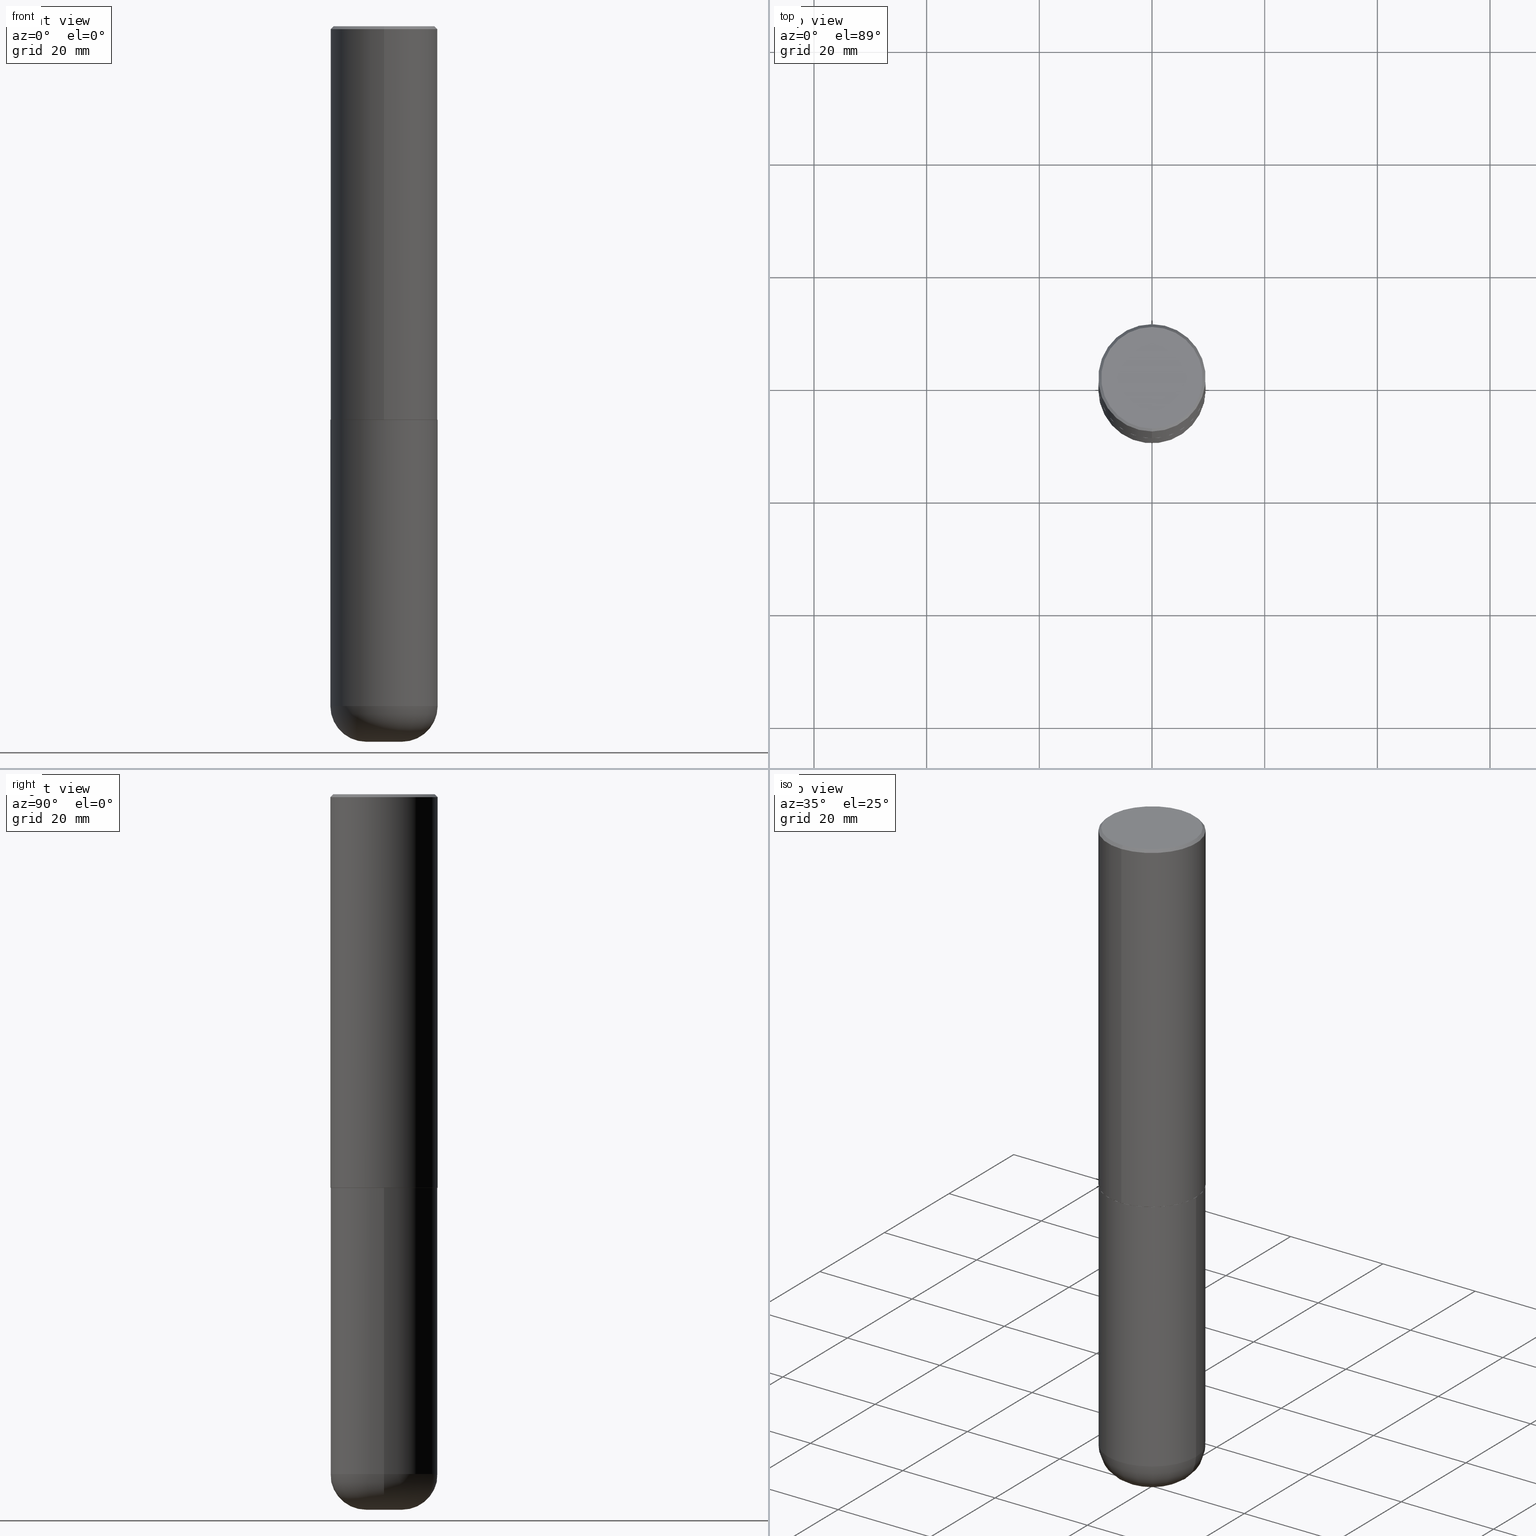
[diagram: canonical four-view strip — front | top / right | iso, engineering-drawing reading convention]
A machine part, canonical four-view strip (front | top / right | iso — engineering-drawing reading convention). The complete STEP part file that produces these views, byte-faithful:
ISO-10303-21;
HEADER;
FILE_DESCRIPTION (( 'STEP AP203' ),
    '1' );
FILE_NAME ('37688.STEP',
    '2024-03-02T08:21:36',
    ( '' ),
    ( '' ),
    'SwSTEP 2.0',
    'SolidWorks 2023',
    '' );
FILE_SCHEMA (( 'CONFIG_CONTROL_DESIGN' ));
ENDSEC;

DATA;
#1 = ADVANCED_FACE ( 'NONE', ( #340 ), #23, .T. ) ;
#2 = MECHANICAL_CONTEXT ( 'NONE', #353, 'mechanical' ) ;
#3 = DIRECTION ( 'NONE',  ( 5.024295867789434219E-15, 0.7071067811867430830, 0.7071067811863519514 ) ) ;
#4 = COORDINATED_UNIVERSAL_TIME_OFFSET ( 5, 0, .BEHIND. ) ;
#5 = ADVANCED_FACE ( 'NONE', ( #19 ), #278, .T. ) ;
#6 = DIRECTION ( 'NONE',  ( -2.446040391741596606E-29, 3.490662795793665557E-15, 1.000000000000000000 ) ) ;
#7 = CIRCLE ( 'NONE', #43, 0.1250000000000000555 ) ;
#8 = ORGANIZATION ( 'UNSPECIFIED', 'UNSPECIFIED', '' ) ;
#9 = FACE_OUTER_BOUND ( 'NONE', #371, .T. ) ;
#10 = ORIENTED_EDGE ( 'NONE', *, *, #62, .T. ) ;
#11 = DIRECTION ( 'NONE',  ( 1.000000000000000000, -6.982962677686266711E-15, 0.000000000000000000 ) ) ;
#12 = CC_DESIGN_PERSON_AND_ORGANIZATION_ASSIGNMENT ( #66, #235, ( #358 ) ) ;
#13 = DIRECTION ( 'NONE',  ( 2.446040391741596606E-29, -3.490662795793665557E-15, -1.000000000000000000 ) ) ;
#14 = ORIENTED_EDGE ( 'NONE', *, *, #173, .T. ) ;
#15 = CLOSED_SHELL ( 'NONE', ( #86, #363, #74, #1, #339, #5 ) ) ;
#16 = ORIENTED_EDGE ( 'NONE', *, *, #169, .T. ) ;
#17 = ORIENTED_EDGE ( 'NONE', *, *, #209, .T. ) ;
#18 = PRODUCT_RELATED_PRODUCT_CATEGORY ( 'detail', '', ( #358 ) ) ;
#19 = FACE_OUTER_BOUND ( 'NONE', #247, .T. ) ;
#20 = EDGE_CURVE ( 'NONE', #395, #275, #378, .T. ) ;
#21 = CARTESIAN_POINT ( 'NONE',  ( 0.000000000000000000, 0.000000000000000000, 0.000000000000000000 ) ) ;
#22 = DIRECTION ( 'NONE',  ( 2.438088387897960049E-29, -3.491481338843145188E-15, -1.000000000000000000 ) ) ;
#23 = CYLINDRICAL_SURFACE ( 'NONE', #63, 0.3749999999999999445 ) ;
#24 = CARTESIAN_POINT ( 'NONE',  ( 1.222734403092568523E-28, -1.745740669421573304E-14, -5.000000000000000888 ) ) ;
#25 = APPROVAL_PERSON_ORGANIZATION ( #346, #61, #163 ) ;
#26 = CARTESIAN_POINT ( 'NONE',  ( 2.618611004132350411E-15, 0.3749999999999999445, -0.02000000000000139513 ) ) ;
#27 = COORDINATED_UNIVERSAL_TIME_OFFSET ( 5, 0, .BEHIND. ) ;
#28 = CC_DESIGN_DATE_AND_TIME_ASSIGNMENT ( #319, #201, ( #417 ) ) ;
#29 = DIRECTION ( 'NONE',  ( -2.445468806185136877E-29, 3.491481338843145188E-15, 1.000000000000000000 ) ) ;
#30 = MANIFOLD_SOLID_BREP ( 'Body-Move/Copy2[1]', #15 ) ;
#31 = CALENDAR_DATE ( 2024, 2, 3 ) ;
#32 = DIRECTION ( 'NONE',  ( -6.982962677686266711E-15, -1.000000000000000000, 3.491481338843145583E-15 ) ) ;
#33 = AXIS2_PLACEMENT_3D ( 'NONE', #84, #216, #249 ) ;
#34 = APPROVAL_STATUS ( 'not_yet_approved' ) ;
#35 = LINE ( 'NONE', #167, #283 ) ;
#36 = PERSON_AND_ORGANIZATION ( #134, #8 ) ;
#37 = CARTESIAN_POINT ( 'NONE',  ( 6.726611077289389265E-29, -9.599322688432580971E-15, -2.750000000000000000 ) ) ;
#38 = CARTESIAN_POINT ( 'NONE',  ( 1.161597682937940108E-28, -1.658453635950494339E-14, -4.750000000000000000 ) ) ;
#39 = EDGE_LOOP ( 'NONE', ( #313, #407, #238, #375 ) ) ;
#40 = DIRECTION ( 'NONE',  ( 1.000000000000000000, -6.982962677686266711E-15, 0.000000000000000000 ) ) ;
#41 = VERTEX_POINT ( 'NONE', #402 ) ;
#42 = DIRECTION ( 'NONE',  ( -6.982962677686265922E-15, -1.000000000000000000, 3.494488891895536035E-15 ) ) ;
#43 = AXIS2_PLACEMENT_3D ( 'NONE', #24, #88, #412 ) ;
#44 = EDGE_LOOP ( 'NONE', ( #277, #335, #213, #246 ) ) ;
#45 = EDGE_LOOP ( 'NONE', ( #296, #14 ) ) ;
#46 = EDGE_CURVE ( 'NONE', #41, #241, #336, .T. ) ;
#47 = DIRECTION ( 'NONE',  ( -1.000000000000000000, 6.982962677686265922E-15, -4.876176775795935793E-29 ) ) ;
#48 = DIRECTION ( 'NONE',  ( -2.446040391741596606E-29, 3.490662795793665557E-15, 1.000000000000000000 ) ) ;
#49 = CIRCLE ( 'NONE', #119, 0.2500000000000003886 ) ;
#50 = ORIENTED_EDGE ( 'NONE', *, *, #331, .T. ) ;
#51 = EDGE_CURVE ( 'NONE', #219, #175, #197, .T. ) ;
#52 = DIRECTION ( 'NONE',  ( 1.000000000000000000, -6.982962677686266711E-15, 4.876176775795935793E-29 ) ) ;
#53 = CARTESIAN_POINT ( 'NONE',  ( 0.000000000000000000, 0.000000000000000000, 0.000000000000000000 ) ) ;
#54 = AXIS2_PLACEMENT_3D ( 'NONE', #114, #48, #309 ) ;
#55 = COORDINATED_UNIVERSAL_TIME_OFFSET ( 5, 0, .BEHIND. ) ;
#56 = CARTESIAN_POINT ( 'NONE',  ( 0.3749999999999999445, -2.618611004132349622E-15, 1.828566290923475642E-29 ) ) ;
#57 = PERSON_AND_ORGANIZATION ( #134, #8 ) ;
#58 = CARTESIAN_POINT ( 'NONE',  ( 0.1250000000000000278, -1.745740669421572673E-14, -4.750000000000000000 ) ) ;
#59 = PERSON_AND_ORGANIZATION_ROLE ( 'design_supplier' ) ;
#60 = CARTESIAN_POINT ( 'NONE',  ( -0.3750000000000002220, -1.392000110040456296E-14, -4.750000000000000000 ) ) ;
#61 = APPROVAL ( #34, 'UNSPECIFIED' ) ;
#62 = EDGE_CURVE ( 'NONE', #241, #41, #127, .T. ) ;
#63 = AXIS2_PLACEMENT_3D ( 'NONE', #118, #342, #77 ) ;
#64 = AXIS2_PLACEMENT_3D ( 'NONE', #72, #100, #141 ) ;
#65 = CYLINDRICAL_SURFACE ( 'NONE', #403, 0.3750000000000002220 ) ;
#66 = PERSON_AND_ORGANIZATION ( #134, #8 ) ;
#67 = DIRECTION ( 'NONE',  ( -2.446040391741596606E-29, 3.490662795793665557E-15, 1.000000000000000000 ) ) ;
#68 = ORIENTED_EDGE ( 'NONE', *, *, #396, .F. ) ;
#69 = DIRECTION ( 'NONE',  ( 2.446040391741596606E-29, -3.490662795793665557E-15, -1.000000000000000000 ) ) ;
#70 = AXIS2_PLACEMENT_3D ( 'NONE', #153, #338, #184 ) ;
#71 = CIRCLE ( 'NONE', #179, 0.3750000000000000555 ) ;
#72 = CARTESIAN_POINT ( 'NONE',  ( 1.161597682937940108E-28, -1.658453635950494339E-14, -4.750000000000000000 ) ) ;
#73 = ORIENTED_EDGE ( 'NONE', *, *, #106, .F. ) ;
#74 = ADVANCED_FACE ( 'NONE', ( #217 ), #280, .F. ) ;
#75 = APPROVAL ( #133, 'UNSPECIFIED' ) ;
#76 = ORIENTED_EDGE ( 'NONE', *, *, #370, .F. ) ;
#77 = DIRECTION ( 'NONE',  ( 1.000000000000000000, -6.982962677686266711E-15, 4.876176775795935793E-29 ) ) ;
#78 = ORIENTED_EDGE ( 'NONE', *, *, #379, .T. ) ;
#79 = PRODUCT_DEFINITION_SHAPE ( 'NONE', 'NONE',  #115 ) ;
#80 = ORIENTED_EDGE ( 'NONE', *, *, #239, .F. ) ;
#81 = ORIENTED_EDGE ( 'NONE', *, *, #276, .F. ) ;
#82 = CONICAL_SURFACE ( 'NONE', #345, 0.3739999999999999991, 0.7853981633977213939 ) ;
#83 = LOCAL_TIME ( 3, 21, 36.00000000000000000, #55 ) ;
#84 = CARTESIAN_POINT ( 'NONE',  ( 6.726611077289389265E-29, -9.599322688432580971E-15, -2.750000000000000000 ) ) ;
#85 = DIRECTION ( 'NONE',  ( 7.105427357601001859E-15, 1.000000000000000000, -3.491481338843145583E-15 ) ) ;
#86 = ADVANCED_FACE ( 'NONE', ( #183 ), #281, .T. ) ;
#87 = COORDINATED_UNIVERSAL_TIME_OFFSET ( 5, 0, .BEHIND. ) ;
#88 = DIRECTION ( 'NONE',  ( -2.445468806185136597E-29, 3.491481338843145583E-15, 1.000000000000000000 ) ) ;
#89 = EDGE_CURVE ( 'NONE', #395, #101, #151, .T. ) ;
#90 = CONICAL_SURFACE ( 'NONE', #329, 0.3750000000000000555, 0.7853981633974465026 ) ;
#91 = APPROVAL_ROLE ( '' ) ;
#92 = CARTESIAN_POINT ( 'NONE',  ( 1.161597682937940108E-28, -1.658453635950494339E-14, -4.750000000000000000 ) ) ;
#93 = PERSON_AND_ORGANIZATION_ROLE ( 'creator' ) ;
#94 = EDGE_CURVE ( 'NONE', #275, #146, #116, .T. ) ;
#95 = CARTESIAN_POINT ( 'NONE',  ( -0.1250000000000000278, -1.569635793980481500E-14, -4.750000000000000000 ) ) ;
#96 = FACE_OUTER_BOUND ( 'NONE', #111, .T. ) ;
#97 = VECTOR ( 'NONE', #124, 39.37007874015748143 ) ;
#98 = AXIS2_PLACEMENT_3D ( 'NONE', #253, #318, #224 ) ;
#99 = LOCAL_TIME ( 3, 21, 36.00000000000000000, #321 ) ;
#100 = DIRECTION ( 'NONE',  ( -2.445468806185136597E-29, 3.491481338843145583E-15, 1.000000000000000000 ) ) ;
#101 = VERTEX_POINT ( 'NONE', #26 ) ;
#102 = CARTESIAN_POINT ( 'NONE',  ( 6.725039217009124520E-29, -9.601573681818649859E-15, -2.750000000000000000 ) ) ;
#103 = APPROVAL ( #159, 'UNSPECIFIED' ) ;
#104 = DIRECTION ( 'NONE',  ( -6.982962677686265922E-15, -1.000000000000000000, 3.490662795793665557E-15 ) ) ;
#105 = ORIENTED_EDGE ( 'NONE', *, *, #286, .F. ) ;
#106 = EDGE_CURVE ( 'NONE', #245, #117, #107, .T. ) ;
#107 = CIRCLE ( 'NONE', #311, 0.3749999999999999445 ) ;
#108 = DIRECTION ( 'NONE',  ( -2.446040391741596606E-29, 3.490662795793665557E-15, 1.000000000000000000 ) ) ;
#109 = ORIENTED_EDGE ( 'NONE', *, *, #276, .T. ) ;
#110 = SHAPE_DEFINITION_REPRESENTATION ( #79, #203 ) ;
#111 = EDGE_LOOP ( 'NONE', ( #252, #211, #50, #76 ) ) ;
#112 = VECTOR ( 'NONE', #405, 39.37007874015748143 ) ;
#113 = AXIS2_PLACEMENT_3D ( 'NONE', #397, #108, #243 ) ;
#114 = CARTESIAN_POINT ( 'NONE',  ( 6.724165036897648492E-29, -9.595832025636787455E-15, -2.749000000000000110 ) ) ;
#115 = PRODUCT_DEFINITION ( 'UNKNOWN', '', #391, #383 ) ;
#116 = LINE ( 'NONE', #248, #373 ) ;
#117 = VERTEX_POINT ( 'NONE', #60 ) ;
#118 = CARTESIAN_POINT ( 'NONE',  ( 0.000000000000000000, 0.000000000000000000, 0.000000000000000000 ) ) ;
#119 = AXIS2_PLACEMENT_3D ( 'NONE', #95, #85, #229 ) ;
#120 = TOROIDAL_SURFACE ( 'NONE', #64, 0.1250000000000000278, 0.2500000000000003886 ) ;
#121 = ADVANCED_FACE ( 'NONE', ( #157 ), #82, .T. ) ;
#122 = CARTESIAN_POINT ( 'NONE',  ( 6.726611077289389265E-29, -9.599322688432580971E-15, -2.750000000000000000 ) ) ;
#123 = PERSON_AND_ORGANIZATION_ROLE ( 'creator' ) ;
#124 = DIRECTION ( 'NONE',  ( -4.937700262165896205E-15, -0.7071067811867381980, 0.7071067811863568364 ) ) ;
#125 = APPROVAL_DATE_TIME ( #388, #103 ) ;
#126 = CYLINDRICAL_SURFACE ( 'NONE', #178, 0.3750000000000002220 ) ;
#127 = CIRCLE ( 'NONE', #70, 0.3739999999999999991 ) ;
#128 = CC_DESIGN_PERSON_AND_ORGANIZATION_ASSIGNMENT ( #416, #260, ( #417 ) ) ;
#129 = CC_DESIGN_APPROVAL ( #103, ( #115 ) ) ;
#130 = DIRECTION ( 'NONE',  ( -2.446040391741596606E-29, 3.490662795793665557E-15, 1.000000000000000000 ) ) ;
#131 = EDGE_CURVE ( 'NONE', #117, #245, #188, .T. ) ;
#132 = DIRECTION ( 'NONE',  ( -6.982962677686265922E-15, -1.000000000000000000, 2.913971193241877611E-15 ) ) ;
#133 = APPROVAL_STATUS ( 'not_yet_approved' ) ;
#134 = PERSON ( 'UNSPECIFIED', 'UNSPECIFIED', 'UNSPECIFIED', ('UNSPECIFIED'), ('UNSPECIFIED'), ('UNSPECIFIED') ) ;
#135 = DIRECTION ( 'NONE',  ( -2.445468806185136597E-29, 3.491481338843145583E-15, 1.000000000000000000 ) ) ;
#136 = ORIENTED_EDGE ( 'NONE', *, *, #106, .T. ) ;
#137 = AXIS2_PLACEMENT_3D ( 'NONE', #102, #212, #11 ) ;
#138 = LOCAL_TIME ( 3, 21, 36.00000000000000000, #27 ) ;
#139 = CARTESIAN_POINT ( 'NONE',  ( 6.725039217009124520E-29, -9.601573681818649859E-15, -2.750000000000000000 ) ) ;
#140 = ADVANCED_FACE ( 'NONE', ( #291 ), #250, .T. ) ;
#141 = DIRECTION ( 'NONE',  ( 1.000000000000000000, -6.982962677686270655E-15, 4.883557194083114583E-29 ) ) ;
#142 = DIRECTION ( 'NONE',  ( 6.982962677686265922E-15, 1.000000000000000000, -3.494488891895536035E-15 ) ) ;
#143 = EDGE_LOOP ( 'NONE', ( #400, #109, #145, #307 ) ) ;
#144 = CLOSED_SHELL ( 'NONE', ( #140, #152, #308, #328, #256, #121, #365, #299 ) ) ;
#145 = ORIENTED_EDGE ( 'NONE', *, *, #226, .T. ) ;
#146 = VERTEX_POINT ( 'NONE', #192 ) ;
#147 = DIRECTION ( 'NONE',  ( -6.982962677686265922E-15, -1.000000000000000000, 3.490662795793665557E-15 ) ) ;
#148 = VECTOR ( 'NONE', #6, 39.37007874015748143 ) ;
#149 = CC_DESIGN_APPROVAL ( #61, ( #417 ) ) ;
#150 = CC_DESIGN_PERSON_AND_ORGANIZATION_ASSIGNMENT ( #228, #93, ( #391 ) ) ;
#151 = LINE ( 'NONE', #279, #112 ) ;
#152 = ADVANCED_FACE ( 'NONE', ( #196 ), #126, .T. ) ;
#153 = CARTESIAN_POINT ( 'NONE',  ( 6.726611077289389265E-29, -9.599322688432580971E-15, -2.750000000000000000 ) ) ;
#154 = DIRECTION ( 'NONE',  ( -2.446040391741596606E-29, 3.490662795793665557E-15, 1.000000000000000000 ) ) ;
#155 = CC_DESIGN_PERSON_AND_ORGANIZATION_ASSIGNMENT ( #230, #123, ( #115 ) ) ;
#156 = CIRCLE ( 'NONE', #137, 0.3750000000000000555 ) ;
#157 = FACE_OUTER_BOUND ( 'NONE', #380, .T. ) ;
#158 = APPROVAL_PERSON_ORGANIZATION ( #36, #75, #91 ) ;
#159 = APPROVAL_STATUS ( 'not_yet_approved' ) ;
#160 = CARTESIAN_POINT ( 'NONE',  ( -2.611628041454596160E-15, -0.3740000000000096581, -2.749999999999998668 ) ) ;
#161 = CALENDAR_DATE ( 2024, 2, 3 ) ;
#162 = DIRECTION ( 'NONE',  ( -2.446040391741596606E-29, 3.490662795793665557E-15, 1.000000000000000000 ) ) ;
#163 = APPROVAL_ROLE ( '' ) ;
#164 = CARTESIAN_POINT ( 'NONE',  ( 1.161597682937940108E-28, -1.658453635950494339E-14, -4.750000000000000000 ) ) ;
#165 = AXIS2_PLACEMENT_3D ( 'NONE', #58, #32, #389 ) ;
#166 = DATE_AND_TIME ( #351, #83 ) ;
#167 = CARTESIAN_POINT ( 'NONE',  ( 2.657429831742841742E-15, 0.3739999999999903957, -2.750000000000000888 ) ) ;
#168 =( LENGTH_UNIT ( ) NAMED_UNIT ( * ) SI_UNIT ( $, .METRE. ) );
#169 = EDGE_CURVE ( 'NONE', #175, #101, #381, .T. ) ;
#170 = CARTESIAN_POINT ( 'NONE',  ( 2.548781377355487113E-15, 0.3549999999999999822, -1.192522237898212341E-15 ) ) ;
#171 = ORIENTED_EDGE ( 'NONE', *, *, #304, .F. ) ;
#172 = CIRCLE ( 'NONE', #165, 0.2500000000000003886 ) ;
#173 = EDGE_CURVE ( 'NONE', #275, #395, #242, .T. ) ;
#174 = DIRECTION ( 'NONE',  ( -2.445468806185136877E-29, 3.491481338843145188E-15, 1.000000000000000000 ) ) ;
#175 = VERTEX_POINT ( 'NONE', #355 ) ;
#176 = FACE_OUTER_BOUND ( 'NONE', #45, .T. ) ;
#177 = ORIENTED_EDGE ( 'NONE', *, *, #62, .F. ) ;
#178 = AXIS2_PLACEMENT_3D ( 'NONE', #352, #130, #258 ) ;
#179 = AXIS2_PLACEMENT_3D ( 'NONE', #210, #67, #42 ) ;
#180 = ORIENTED_EDGE ( 'NONE', *, *, #209, .F. ) ;
#181 = ORIENTED_EDGE ( 'NONE', *, *, #396, .T. ) ;
#182 = EDGE_CURVE ( 'NONE', #204, #117, #49, .T. ) ;
#183 = FACE_OUTER_BOUND ( 'NONE', #398, .T. ) ;
#184 = DIRECTION ( 'NONE',  ( -6.982962677686266711E-15, -1.000000000000000000, 2.921762560068730595E-15 ) ) ;
#185 = EDGE_LOOP ( 'NONE', ( #68, #187, #303, #171 ) ) ;
#186 = EDGE_CURVE ( 'NONE', #175, #219, #290, .T. ) ;
#187 = ORIENTED_EDGE ( 'NONE', *, *, #131, .T. ) ;
#188 = CIRCLE ( 'NONE', #384, 0.3749999999999999445 ) ;
#189 = CARTESIAN_POINT ( 'NONE',  ( 2.664535259100376880E-15, 0.3750000000000002220, -1.308998548422625521E-15 ) ) ;
#190 = CC_DESIGN_SECURITY_CLASSIFICATION ( #417, ( #391 ) ) ;
#191 = DIRECTION ( 'NONE',  ( 0.000000000000000000, 0.000000000000000000, 1.000000000000000000 ) ) ;
#192 = CARTESIAN_POINT ( 'NONE',  ( -2.572686749164323547E-15, -0.3750000000000001110, -0.01999999999999877570 ) ) ;
#193 = CALENDAR_DATE ( 2024, 2, 3 ) ;
#194 = DIRECTION ( 'NONE',  ( -2.446040391741596606E-29, 3.490662795793665557E-15, 1.000000000000000000 ) ) ;
#195 = PERSON_AND_ORGANIZATION ( #134, #8 ) ;
#196 = FACE_OUTER_BOUND ( 'NONE', #393, .T. ) ;
#197 = CIRCLE ( 'NONE', #54, 0.3750000000000003886 ) ;
#198 = CC_DESIGN_APPROVAL ( #75, ( #391 ) ) ;
#199 = DATE_AND_TIME ( #390, #251 ) ;
#200 = DIRECTION ( 'NONE',  ( 2.446040391741596045E-29, -3.490662795793665557E-15, -1.000000000000000000 ) ) ;
#201 = DATE_TIME_ROLE ( 'classification_date' ) ;
#202 = LINE ( 'NONE', #294, #411 ) ;
#203 = ADVANCED_BREP_SHAPE_REPRESENTATION ( '37688', ( #30, #310, #234 ), #404 ) ;
#204 = VERTEX_POINT ( 'NONE', #323 ) ;
#205 = FACE_OUTER_BOUND ( 'NONE', #39, .T. ) ;
#206 = ORIENTED_EDGE ( 'NONE', *, *, #408, .F. ) ;
#207 = AXIS2_PLACEMENT_3D ( 'NONE', #377, #220, #47 ) ;
#208 = LOCAL_TIME ( 3, 21, 36.00000000000000000, #4 ) ;
#209 = EDGE_CURVE ( 'NONE', #41, #175, #35, .T. ) ;
#210 = CARTESIAN_POINT ( 'NONE',  ( 4.892080783483214581E-31, -6.981325591587361238E-17, -0.02000000000000008715 ) ) ;
#211 = ORIENTED_EDGE ( 'NONE', *, *, #186, .T. ) ;
#212 = DIRECTION ( 'NONE',  ( -2.445468806185136597E-29, 3.491481338843145583E-15, 1.000000000000000000 ) ) ;
#213 = ORIENTED_EDGE ( 'NONE', *, *, #408, .T. ) ;
#214 = ORIENTED_EDGE ( 'NONE', *, *, #226, .F. ) ;
#215 = CARTESIAN_POINT ( 'NONE',  ( -1.829488409846578039E-28, -6.116697459284396031E-14, -5.000000000000000000 ) ) ;
#216 = DIRECTION ( 'NONE',  ( -2.446040391741596606E-29, 3.490662795793665557E-15, 1.000000000000000000 ) ) ;
#217 = FACE_OUTER_BOUND ( 'NONE', #364, .T. ) ;
#218 = AXIS2_PLACEMENT_3D ( 'NONE', #37, #360, #104 ) ;
#219 = VERTEX_POINT ( 'NONE', #227 ) ;
#220 = DIRECTION ( 'NONE',  ( 2.438088387897960049E-29, -3.491481338843145188E-15, -1.000000000000000000 ) ) ;
#221 = CARTESIAN_POINT ( 'NONE',  ( -2.504081769186608216E-15, -0.3549999999999999822, 1.285848347115290366E-15 ) ) ;
#222 =( CONVERSION_BASED_UNIT ( 'INCH', #414 ) LENGTH_UNIT ( ) NAMED_UNIT ( #406 ) );
#223 = CIRCLE ( 'NONE', #98, 0.1250000000000000555 ) ;
#224 = DIRECTION ( 'NONE',  ( 1.000000000000000000, -6.982962677686275388E-15, 0.000000000000000000 ) ) ;
#225 = DATE_AND_TIME ( #31, #208 ) ;
#226 = EDGE_CURVE ( 'NONE', #401, #245, #172, .T. ) ;
#227 = CARTESIAN_POINT ( 'NONE',  ( -2.618611004132284935E-15, -0.3750000000000099920, -2.748999999999999222 ) ) ;
#228 = PERSON_AND_ORGANIZATION ( #134, #8 ) ;
#229 = DIRECTION ( 'NONE',  ( -1.000000000000000000, 7.105427357601000281E-15, 0.000000000000000000 ) ) ;
#230 = PERSON_AND_ORGANIZATION ( #134, #8 ) ;
#231 = CARTESIAN_POINT ( 'NONE',  ( -1.141397163745304909E-45, 1.628849886601155835E-31, 4.666305460853910467E-17 ) ) ;
#232 = CC_DESIGN_DATE_AND_TIME_ASSIGNMENT ( #199, #324, ( #115 ) ) ;
#233 = AXIS2_PLACEMENT_3D ( 'NONE', #316, #284, #132 ) ;
#234 = AXIS2_PLACEMENT_3D ( 'NONE', #317, #191, #354 ) ;
#235 = PERSON_AND_ORGANIZATION_ROLE ( 'design_owner' ) ;
#236 = PLANE ( 'NONE',  #218 ) ;
#237 = LINE ( 'NONE', #392, #148 ) ;
#238 = ORIENTED_EDGE ( 'NONE', *, *, #89, .T. ) ;
#239 = EDGE_CURVE ( 'NONE', #241, #219, #386, .T. ) ;
#240 = CARTESIAN_POINT ( 'NONE',  ( -0.3750000000000000555, -1.042851976156142014E-14, -2.750000000000000000 ) ) ;
#241 = VERTEX_POINT ( 'NONE', #263 ) ;
#242 = CIRCLE ( 'NONE', #341, 0.3549999999999999822 ) ;
#243 = DIRECTION ( 'NONE',  ( -6.982962677686265922E-15, -1.000000000000000000, 3.494488891895536035E-15 ) ) ;
#244 = ORIENTED_EDGE ( 'NONE', *, *, #239, .T. ) ;
#245 = VERTEX_POINT ( 'NONE', #350 ) ;
#246 = ORIENTED_EDGE ( 'NONE', *, *, #89, .F. ) ;
#247 = EDGE_LOOP ( 'NONE', ( #372, #81 ) ) ;
#248 = CARTESIAN_POINT ( 'NONE',  ( -2.572686749164323547E-15, -0.3750000000000001110, -0.01999999999999877570 ) ) ;
#249 = DIRECTION ( 'NONE',  ( -6.982962677686266711E-15, -1.000000000000000000, 2.921762560068730595E-15 ) ) ;
#250 = CONICAL_SURFACE ( 'NONE', #367, 0.3739999999999999991, 0.7853981633977213939 ) ;
#251 = LOCAL_TIME ( 3, 21, 36.00000000000000000, #87 ) ;
#252 = ORIENTED_EDGE ( 'NONE', *, *, #169, .F. ) ;
#253 = CARTESIAN_POINT ( 'NONE',  ( 1.222734403092568523E-28, -1.745740669421573304E-14, -5.000000000000000888 ) ) ;
#254 = APPLICATION_PROTOCOL_DEFINITION ( 'international standard', 'config_control_design', 1994, #399 ) ;
#255 = DIRECTION ( 'NONE',  ( -6.982962677686266711E-15, -1.000000000000000000, 3.490662795793665951E-15 ) ) ;
#256 = ADVANCED_FACE ( 'NONE', ( #96 ), #65, .T. ) ;
#257 = AXIS2_PLACEMENT_3D ( 'NONE', #215, #22, #312 ) ;
#258 = DIRECTION ( 'NONE',  ( -6.982962677686266711E-15, -1.000000000000000000, 3.490662795793665951E-15 ) ) ;
#259 = CONICAL_SURFACE ( 'NONE', #369, 0.3750000000000000555, 0.7853981633974465026 ) ;
#260 = PERSON_AND_ORGANIZATION_ROLE ( 'classification_officer' ) ;
#261 = DIRECTION ( 'NONE',  ( 1.000000000000000000, -6.982962677686269077E-15, 0.000000000000000000 ) ) ;
#262 = EDGE_CURVE ( 'NONE', #401, #204, #7, .T. ) ;
#263 = CARTESIAN_POINT ( 'NONE',  ( -2.611628041454596160E-15, -0.3740000000000096581, -2.749999999999998668 ) ) ;
#264 = SECURITY_CLASSIFICATION_LEVEL ( 'unclassified' ) ;
#265 = CARTESIAN_POINT ( 'NONE',  ( 2.478951750578624209E-15, 0.3549999999999999822, -1.215853765202481601E-15 ) ) ;
#266 = AXIS2_PLACEMENT_3D ( 'NONE', #265, #200, #301 ) ;
#267 = ORIENTED_EDGE ( 'NONE', *, *, #331, .F. ) ;
#268 = CARTESIAN_POINT ( 'NONE',  ( 0.3750000000000000555, -1.222018468595100145E-14, -2.750000000000000000 ) ) ;
#269 = CC_DESIGN_PERSON_AND_ORGANIZATION_ASSIGNMENT ( #57, #59, ( #391 ) ) ;
#270 = ORIENTED_EDGE ( 'NONE', *, *, #46, .T. ) ;
#271 = CARTESIAN_POINT ( 'NONE',  ( 0.1250000000000000555, -1.833027702892651638E-14, -5.000000000000000888 ) ) ;
#272 = ORIENTED_EDGE ( 'NONE', *, *, #379, .F. ) ;
#273 = DIRECTION ( 'NONE',  ( -2.445468806185136597E-29, 3.491481338843145583E-15, 1.000000000000000000 ) ) ;
#274 = EDGE_LOOP ( 'NONE', ( #10, #17, #409, #80 ) ) ;
#275 = VERTEX_POINT ( 'NONE', #221 ) ;
#276 = EDGE_CURVE ( 'NONE', #204, #401, #223, .T. ) ;
#277 = ORIENTED_EDGE ( 'NONE', *, *, #173, .F. ) ;
#278 = PLANE ( 'NONE',  #257 ) ;
#279 = CARTESIAN_POINT ( 'NONE',  ( 2.618611004132350411E-15, 0.3749999999999999445, -0.02000000000000139513 ) ) ;
#280 = PLANE ( 'NONE',  #207 ) ;
#281 = CYLINDRICAL_SURFACE ( 'NONE', #315, 0.3749999999999999445 ) ;
#282 = VECTOR ( 'NONE', #29, 39.37007874015748143 ) ;
#283 = VECTOR ( 'NONE', #3, 39.37007874015748143 ) ;
#284 = DIRECTION ( 'NONE',  ( -2.446040391741596606E-29, 3.490662795793665557E-15, 1.000000000000000000 ) ) ;
#285 =( NAMED_UNIT ( * ) SI_UNIT ( $, .STERADIAN. ) SOLID_ANGLE_UNIT ( ) );
#286 = EDGE_CURVE ( 'NONE', #245, #327, #348, .T. ) ;
#287 = DIRECTION ( 'NONE',  ( 1.000000000000000000, -6.982962677686269077E-15, 0.000000000000000000 ) ) ;
#288 = DIRECTION ( 'NONE',  ( -4.851104656540954809E-15, -0.7071067811865486830, -0.7071067811865463515 ) ) ;
#289 = APPLICATION_PROTOCOL_DEFINITION ( 'international standard', 'config_control_design', 1994, #353 ) ;
#290 = CIRCLE ( 'NONE', #233, 0.3750000000000003886 ) ;
#291 = FACE_OUTER_BOUND ( 'NONE', #274, .T. ) ;
#292 = APPROVAL_DATE_TIME ( #166, #61 ) ;
#293 = DIRECTION ( 'NONE',  ( -2.445468806185136597E-29, 3.491481338843145583E-15, 1.000000000000000000 ) ) ;
#294 = CARTESIAN_POINT ( 'NONE',  ( -0.3749999999999999445, 2.664535259100375303E-15, -1.844600658845589318E-29 ) ) ;
#295 = CARTESIAN_POINT ( 'NONE',  ( 4.892080783483214581E-31, -6.981325591587361238E-17, -0.02000000000000008715 ) ) ;
#296 = ORIENTED_EDGE ( 'NONE', *, *, #20, .T. ) ;
#297 = CIRCLE ( 'NONE', #113, 0.3750000000000000555 ) ;
#298 = PLANE ( 'NONE',  #266 ) ;
#299 = ADVANCED_FACE ( 'NONE', ( #176 ), #298, .F. ) ;
#300 = VERTEX_POINT ( 'NONE', #240 ) ;
#301 = DIRECTION ( 'NONE',  ( 6.982962677686265922E-15, 1.000000000000000000, -3.490662795793665557E-15 ) ) ;
#302 = ORIENTED_EDGE ( 'NONE', *, *, #262, .T. ) ;
#303 = ORIENTED_EDGE ( 'NONE', *, *, #286, .T. ) ;
#304 = EDGE_CURVE ( 'NONE', #300, #327, #156, .T. ) ;
#305 = AXIS2_PLACEMENT_3D ( 'NONE', #38, #135, #362 ) ;
#306 = EDGE_LOOP ( 'NONE', ( #302, #330, #73, #214 ) ) ;
#307 = ORIENTED_EDGE ( 'NONE', *, *, #131, .F. ) ;
#308 = ADVANCED_FACE ( 'NONE', ( #334 ), #90, .T. ) ;
#309 = DIRECTION ( 'NONE',  ( -6.982962677686265922E-15, -1.000000000000000000, 2.913971193241877611E-15 ) ) ;
#310 = MANIFOLD_SOLID_BREP ( 'Body-Move/Copy2[2]', #144 ) ;
#311 = AXIS2_PLACEMENT_3D ( 'NONE', #92, #293, #287 ) ;
#312 = DIRECTION ( 'NONE',  ( -1.000000000000000000, 6.982962677686265922E-15, -4.876176775795935793E-29 ) ) ;
#313 = ORIENTED_EDGE ( 'NONE', *, *, #94, .F. ) ;
#314 = DIRECTION ( 'NONE',  ( -2.446040391741596606E-29, 3.490662795793665557E-15, 1.000000000000000000 ) ) ;
#315 = AXIS2_PLACEMENT_3D ( 'NONE', #21, #343, #52 ) ;
#316 = CARTESIAN_POINT ( 'NONE',  ( 6.724165036897648492E-29, -9.595832025636787455E-15, -2.749000000000000110 ) ) ;
#317 = CARTESIAN_POINT ( 'NONE',  ( 0.000000000000000000, 0.000000000000000000, 0.000000000000000000 ) ) ;
#318 = DIRECTION ( 'NONE',  ( -2.445468806185136597E-29, 3.491481338843145583E-15, 1.000000000000000000 ) ) ;
#319 = DATE_AND_TIME ( #193, #99 ) ;
#320 = DIRECTION ( 'NONE',  ( -6.982962677686265922E-15, -1.000000000000000000, 3.490662795793665557E-15 ) ) ;
#321 = COORDINATED_UNIVERSAL_TIME_OFFSET ( 5, 0, .BEHIND. ) ;
#322 = VECTOR ( 'NONE', #194, 39.37007874015748143 ) ;
#323 = CARTESIAN_POINT ( 'NONE',  ( -0.1250000000000000555, -1.524461468746008302E-14, -5.000000000000000888 ) ) ;
#324 = DATE_TIME_ROLE ( 'creation_date' ) ;
#325 = APPROVAL_DATE_TIME ( #225, #75 ) ;
#326 = DIRECTION ( 'NONE',  ( 6.982962677686265922E-15, 1.000000000000000000, -3.494488891895536035E-15 ) ) ;
#327 = VERTEX_POINT ( 'NONE', #268 ) ;
#328 = ADVANCED_FACE ( 'NONE', ( #205 ), #259, .T. ) ;
#329 = AXIS2_PLACEMENT_3D ( 'NONE', #295, #69, #142 ) ;
#330 = ORIENTED_EDGE ( 'NONE', *, *, #182, .T. ) ;
#331 = EDGE_CURVE ( 'NONE', #219, #146, #237, .T. ) ;
#332 = FACE_OUTER_BOUND ( 'NONE', #143, .T. ) ;
#333 = ORIENTED_EDGE ( 'NONE', *, *, #46, .F. ) ;
#334 = FACE_OUTER_BOUND ( 'NONE', #44, .T. ) ;
#335 = ORIENTED_EDGE ( 'NONE', *, *, #94, .T. ) ;
#336 = CIRCLE ( 'NONE', #33, 0.3739999999999999991 ) ;
#337 = ORIENTED_EDGE ( 'NONE', *, *, #51, .T. ) ;
#338 = DIRECTION ( 'NONE',  ( -2.446040391741596606E-29, 3.490662795793665557E-15, 1.000000000000000000 ) ) ;
#339 = ADVANCED_FACE ( 'NONE', ( #332 ), #356, .T. ) ;
#340 = FACE_OUTER_BOUND ( 'NONE', #185, .T. ) ;
#341 = AXIS2_PLACEMENT_3D ( 'NONE', #231, #387, #320 ) ;
#342 = DIRECTION ( 'NONE',  ( -2.445468806185136597E-29, 3.491481338843145583E-15, 1.000000000000000000 ) ) ;
#343 = DIRECTION ( 'NONE',  ( -2.445468806185136597E-29, 3.491481338843145583E-15, 1.000000000000000000 ) ) ;
#344 = CARTESIAN_POINT ( 'NONE',  ( 6.726611077289389265E-29, -9.599322688432580971E-15, -2.750000000000000000 ) ) ;
#345 = AXIS2_PLACEMENT_3D ( 'NONE', #344, #415, #413 ) ;
#346 = PERSON_AND_ORGANIZATION ( #134, #8 ) ;
#347 = APPROVAL_PERSON_ORGANIZATION ( #195, #103, #359 ) ;
#348 = LINE ( 'NONE', #56, #282 ) ;
#349 =( NAMED_UNIT ( * ) PLANE_ANGLE_UNIT ( ) SI_UNIT ( $, .RADIAN. ) );
#350 = CARTESIAN_POINT ( 'NONE',  ( 0.3750000000000002220, -1.920314736363729341E-14, -4.750000000000000000 ) ) ;
#351 = CALENDAR_DATE ( 2024, 2, 3 ) ;
#352 = CARTESIAN_POINT ( 'NONE',  ( 0.000000000000000000, 0.000000000000000000, 0.000000000000000000 ) ) ;
#353 = APPLICATION_CONTEXT ( 'configuration controlled 3d designs of mechanical parts and assemblies' ) ;
#354 = DIRECTION ( 'NONE',  ( 1.000000000000000000, 0.000000000000000000, 0.000000000000000000 ) ) ;
#355 = CARTESIAN_POINT ( 'NONE',  ( 2.664535259100411196E-15, 0.3749999999999907296, -2.749000000000000998 ) ) ;
#356 = TOROIDAL_SURFACE ( 'NONE', #305, 0.1250000000000000278, 0.2500000000000003886 ) ;
#357 = UNCERTAINTY_MEASURE_WITH_UNIT (LENGTH_MEASURE( 1.000000000000000082E-05 ), #222, 'distance_accuracy_value', 'NONE');
#358 = PRODUCT ( '37688', '37688', '', ( #2 ) ) ;
#359 = APPROVAL_ROLE ( '' ) ;
#360 = DIRECTION ( 'NONE',  ( -2.446040391741596045E-29, 3.490662795793665557E-15, 1.000000000000000000 ) ) ;
#361 = ORIENTED_EDGE ( 'NONE', *, *, #186, .F. ) ;
#362 = DIRECTION ( 'NONE',  ( 1.000000000000000000, -6.982962677686270655E-15, 4.883557194083114583E-29 ) ) ;
#363 = ADVANCED_FACE ( 'NONE', ( #366 ), #120, .T. ) ;
#364 = EDGE_LOOP ( 'NONE', ( #78, #368 ) ) ;
#365 = ADVANCED_FACE ( 'NONE', ( #9 ), #236, .F. ) ;
#366 = FACE_OUTER_BOUND ( 'NONE', #306, .T. ) ;
#367 = AXIS2_PLACEMENT_3D ( 'NONE', #122, #162, #418 ) ;
#368 = ORIENTED_EDGE ( 'NONE', *, *, #304, .T. ) ;
#369 = AXIS2_PLACEMENT_3D ( 'NONE', #394, #13, #326 ) ;
#370 = EDGE_CURVE ( 'NONE', #101, #146, #71, .T. ) ;
#371 = EDGE_LOOP ( 'NONE', ( #177, #333 ) ) ;
#372 = ORIENTED_EDGE ( 'NONE', *, *, #262, .F. ) ;
#373 = VECTOR ( 'NONE', #288, 39.37007874015748143 ) ;
#374 = CIRCLE ( 'NONE', #385, 0.3750000000000000555 ) ;
#375 = ORIENTED_EDGE ( 'NONE', *, *, #370, .T. ) ;
#376 = CARTESIAN_POINT ( 'NONE',  ( -1.141397163745304909E-45, 1.628849886601155835E-31, 4.666305460853910467E-17 ) ) ;
#377 = CARTESIAN_POINT ( 'NONE',  ( 6.725039217009124520E-29, -9.601573681818649859E-15, -2.750000000000000000 ) ) ;
#378 = CIRCLE ( 'NONE', #410, 0.3549999999999999822 ) ;
#379 = EDGE_CURVE ( 'NONE', #327, #300, #374, .T. ) ;
#380 = EDGE_LOOP ( 'NONE', ( #180, #270, #244, #361 ) ) ;
#381 = LINE ( 'NONE', #189, #322 ) ;
#382 = DIRECTION ( 'NONE',  ( -2.445468806185136597E-29, 3.491481338843145583E-15, 1.000000000000000000 ) ) ;
#383 = DESIGN_CONTEXT ( 'detailed design', #399, 'design' ) ;
#384 = AXIS2_PLACEMENT_3D ( 'NONE', #164, #382, #261 ) ;
#385 = AXIS2_PLACEMENT_3D ( 'NONE', #139, #273, #40 ) ;
#386 = LINE ( 'NONE', #160, #97 ) ;
#387 = DIRECTION ( 'NONE',  ( -2.446040391741596606E-29, 3.490662795793665557E-15, 1.000000000000000000 ) ) ;
#388 = DATE_AND_TIME ( #161, #138 ) ;
#389 = DIRECTION ( 'NONE',  ( 1.000000000000000000, -6.982962677686259611E-15, 0.000000000000000000 ) ) ;
#390 = CALENDAR_DATE ( 2024, 2, 3 ) ;
#391 = PRODUCT_DEFINITION_FORMATION_WITH_SPECIFIED_SOURCE ( 'ANY', '', #358, .NOT_KNOWN. ) ;
#392 = CARTESIAN_POINT ( 'NONE',  ( -2.618611004132351594E-15, -0.3750000000000002220, 1.308998548422625521E-15 ) ) ;
#393 = EDGE_LOOP ( 'NONE', ( #337, #16, #206, #267 ) ) ;
#394 = CARTESIAN_POINT ( 'NONE',  ( 4.892080783483214581E-31, -6.981325591587361238E-17, -0.02000000000000008715 ) ) ;
#395 = VERTEX_POINT ( 'NONE', #170 ) ;
#396 = EDGE_CURVE ( 'NONE', #117, #300, #202, .T. ) ;
#397 = CARTESIAN_POINT ( 'NONE',  ( 4.892080783483214581E-31, -6.981325591587361238E-17, -0.02000000000000008715 ) ) ;
#398 = EDGE_LOOP ( 'NONE', ( #136, #181, #272, #105 ) ) ;
#399 = APPLICATION_CONTEXT ( 'configuration controlled 3d designs of mechanical parts and assemblies' ) ;
#400 = ORIENTED_EDGE ( 'NONE', *, *, #182, .F. ) ;
#401 = VERTEX_POINT ( 'NONE', #271 ) ;
#402 = CARTESIAN_POINT ( 'NONE',  ( 2.660982545421643429E-15, 0.3739999999999903957, -2.750000000000000888 ) ) ;
#403 = AXIS2_PLACEMENT_3D ( 'NONE', #53, #314, #255 ) ;
#404 =( GEOMETRIC_REPRESENTATION_CONTEXT ( 3 ) GLOBAL_UNCERTAINTY_ASSIGNED_CONTEXT ( ( #357 ) ) GLOBAL_UNIT_ASSIGNED_CONTEXT ( ( #222, #349, #285 ) ) REPRESENTATION_CONTEXT ( 'NONE', 'WORKASPACE' ) );
#405 = DIRECTION ( 'NONE',  ( 4.937700262164538576E-15, 0.7071067811865437980, -0.7071067811865512365 ) ) ;
#406 = DIMENSIONAL_EXPONENTS ( 1.000000000000000000, 0.000000000000000000, 0.000000000000000000, 0.000000000000000000, 0.000000000000000000, 0.000000000000000000, 0.000000000000000000 ) ;
#407 = ORIENTED_EDGE ( 'NONE', *, *, #20, .F. ) ;
#408 = EDGE_CURVE ( 'NONE', #146, #101, #297, .T. ) ;
#409 = ORIENTED_EDGE ( 'NONE', *, *, #51, .F. ) ;
#410 = AXIS2_PLACEMENT_3D ( 'NONE', #376, #154, #147 ) ;
#411 = VECTOR ( 'NONE', #174, 39.37007874015748143 ) ;
#412 = DIRECTION ( 'NONE',  ( 1.000000000000000000, -6.982962677686275388E-15, 0.000000000000000000 ) ) ;
#413 = DIRECTION ( 'NONE',  ( -6.982962677686266711E-15, -1.000000000000000000, 2.921762560068730595E-15 ) ) ;
#414 = LENGTH_MEASURE_WITH_UNIT ( LENGTH_MEASURE( 0.02539999999999999897 ), #168 );
#415 = DIRECTION ( 'NONE',  ( -2.446040391741596606E-29, 3.490662795793665557E-15, 1.000000000000000000 ) ) ;
#416 = PERSON_AND_ORGANIZATION ( #134, #8 ) ;
#417 = SECURITY_CLASSIFICATION ( '', '', #264 ) ;
#418 = DIRECTION ( 'NONE',  ( -6.982962677686266711E-15, -1.000000000000000000, 2.921762560068730595E-15 ) ) ;
ENDSEC;
END-ISO-10303-21;
